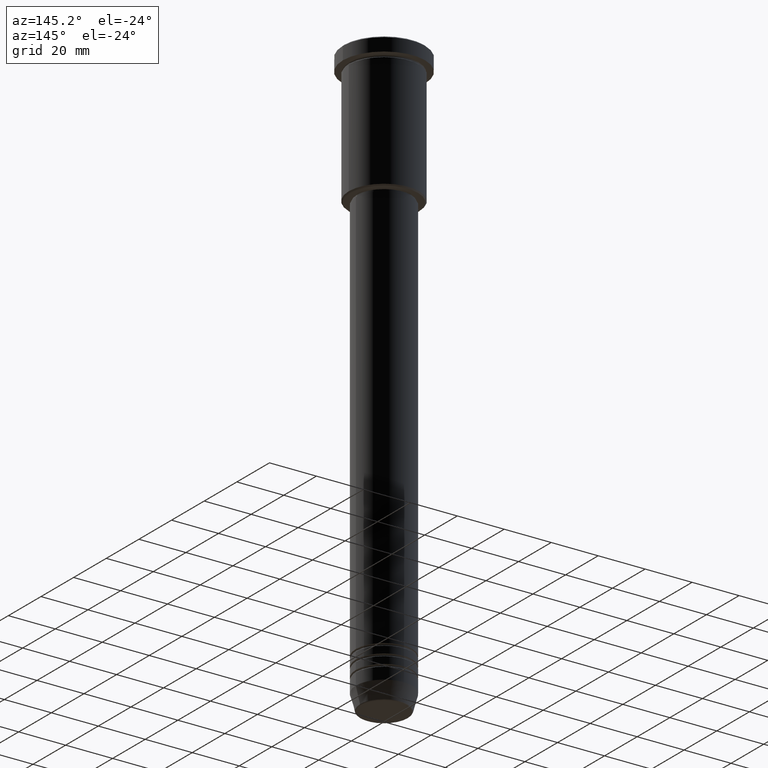
[diagram: clean part render]
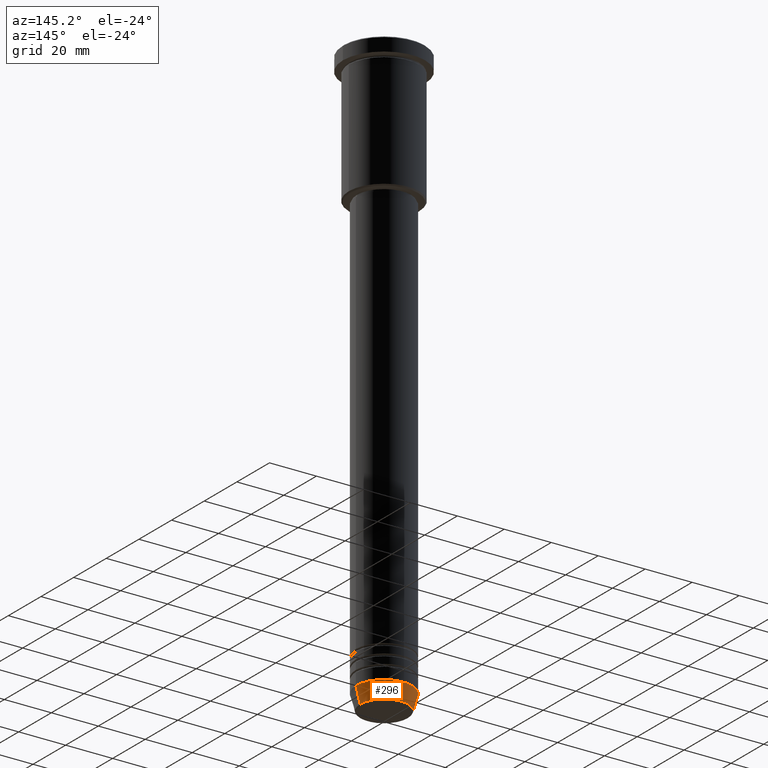
[diagram: same view with one face highlighted and labeled with its STEP entity id]
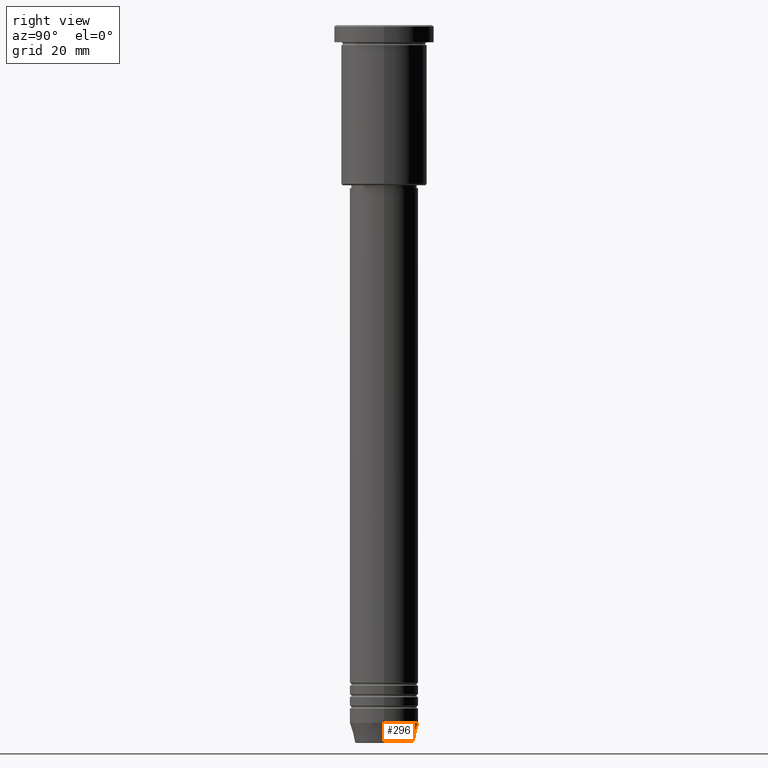
[diagram: same view with one face highlighted and labeled with its STEP entity id]
A machine part, auxiliary view. The second image highlights one B-rep face of the part: STEP entity #296.
A second angle (right view) of the same face is appended — the face is thin or edge-on in the first view.
In plain terms, the highlighted conical surface has half-angle 15 deg.
Its self-contained STEP definition (entity closure, byte-faithful):
#8 = VERTEX_POINT ( 'NONE', #48 ) ;
#10 = CARTESIAN_POINT ( 'NONE',  ( 0.000000000000000000, 0.000000000000000000, -244.0000000000000000 ) ) ;
#23 = VERTEX_POINT ( 'NONE', #311 ) ;
#48 = CARTESIAN_POINT ( 'NONE',  ( 12.00000000000000000, 0.000000000000000000, -244.0000000000000000 ) ) ;
#58 = ORIENTED_EDGE ( 'NONE', *, *, #143, .T. ) ;
#87 = CARTESIAN_POINT ( 'NONE',  ( -12.00000000000000000, 1.469576158976823947E-15, -244.0000000000000000 ) ) ;
#89 = DIRECTION ( 'NONE',  ( 1.000000000000000000, 0.000000000000000000, 0.000000000000000000 ) ) ;
#122 = DIRECTION ( 'NONE',  ( -0.000000000000000000, -0.000000000000000000, 1.000000000000000000 ) ) ;
#143 = EDGE_CURVE ( 'NONE', #636, #23, #905, .T. ) ;
#220 = DIRECTION ( 'NONE',  ( 1.000000000000000000, 0.000000000000000000, 0.000000000000000000 ) ) ;
#225 = CONICAL_SURFACE ( 'NONE', #1179, 12.00000000000000000, 0.2617993877991500740 ) ;
#241 = ORIENTED_EDGE ( 'NONE', *, *, #1130, .F. ) ;
#250 = EDGE_CURVE ( 'NONE', #878, #8, #485, .T. ) ;
#276 = AXIS2_PLACEMENT_3D ( 'NONE', #455, #122, #89 ) ;
#296 = ADVANCED_FACE ( 'NONE', ( #755 ), #225, .T. ) ;
#300 = DIRECTION ( 'NONE',  ( 1.000000000000000000, 0.000000000000000000, 0.000000000000000000 ) ) ;
#311 = CARTESIAN_POINT ( 'NONE',  ( -12.00000000000000000, 1.469576158976823947E-15, -244.0000000000000000 ) ) ;
#455 = CARTESIAN_POINT ( 'NONE',  ( 0.000000000000000000, 0.000000000000000000, -250.6294095225512422 ) ) ;
#463 = DIRECTION ( 'NONE',  ( -0.000000000000000000, -0.000000000000000000, 1.000000000000000000 ) ) ;
#485 = LINE ( 'NONE', #1118, #1065 ) ;
#496 = CARTESIAN_POINT ( 'NONE',  ( 10.22365507213719127, 0.000000000000000000, -250.6294095225512422 ) ) ;
#524 = CIRCLE ( 'NONE', #694, 12.00000000000000000 ) ;
#630 = EDGE_LOOP ( 'NONE', ( #965, #58, #241, #1024 ) ) ;
#636 = VERTEX_POINT ( 'NONE', #995 ) ;
#694 = AXIS2_PLACEMENT_3D ( 'NONE', #855, #463, #220 ) ;
#751 = DIRECTION ( 'NONE',  ( -0.000000000000000000, -0.000000000000000000, 1.000000000000000000 ) ) ;
#755 = FACE_OUTER_BOUND ( 'NONE', #630, .T. ) ;
#771 = CIRCLE ( 'NONE', #276, 10.22365507213719127 ) ;
#855 = CARTESIAN_POINT ( 'NONE',  ( 0.000000000000000000, 0.000000000000000000, -244.0000000000000000 ) ) ;
#878 = VERTEX_POINT ( 'NONE', #496 ) ;
#905 = LINE ( 'NONE', #87, #1161 ) ;
#965 = ORIENTED_EDGE ( 'NONE', *, *, #1093, .T. ) ;
#995 = CARTESIAN_POINT ( 'NONE',  ( -10.22365507213719127, 1.360806402472382744E-15, -250.6294095225512422 ) ) ;
#1024 = ORIENTED_EDGE ( 'NONE', *, *, #250, .F. ) ;
#1065 = VECTOR ( 'NONE', #1108, 1000.000000000000000 ) ;
#1093 = EDGE_CURVE ( 'NONE', #878, #636, #771, .T. ) ;
#1097 = DIRECTION ( 'NONE',  ( -0.2588190451025213501, 3.169619151431772337E-17, 0.9659258262890680902 ) ) ;
#1108 = DIRECTION ( 'NONE',  ( 0.2588190451025213501, 0.000000000000000000, 0.9659258262890680902 ) ) ;
#1118 = CARTESIAN_POINT ( 'NONE',  ( 12.00000000000000000, 0.000000000000000000, -244.0000000000000000 ) ) ;
#1130 = EDGE_CURVE ( 'NONE', #8, #23, #524, .T. ) ;
#1161 = VECTOR ( 'NONE', #1097, 1000.000000000000000 ) ;
#1179 = AXIS2_PLACEMENT_3D ( 'NONE', #10, #751, #300 ) ;